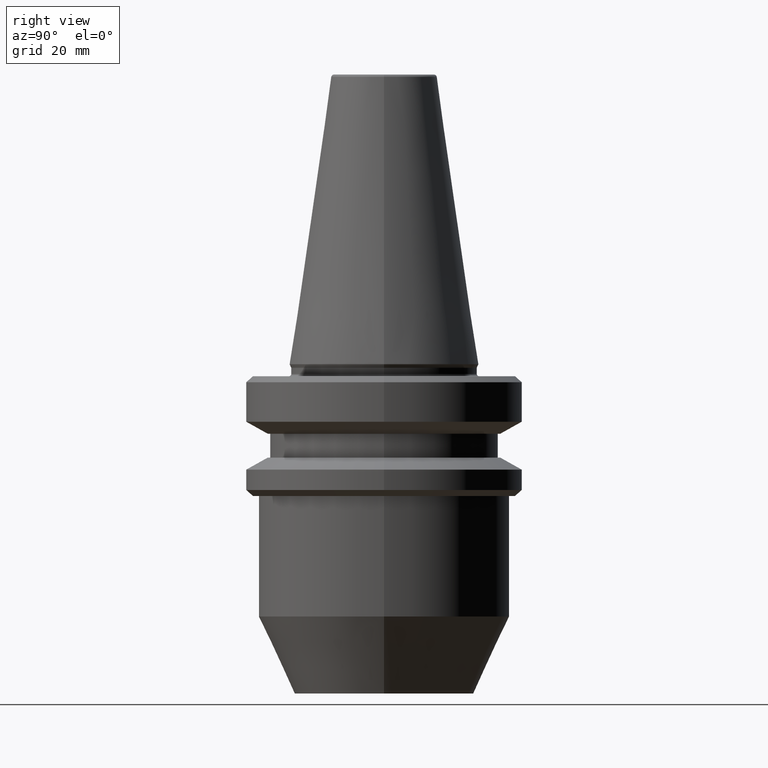
[diagram: clean part render]
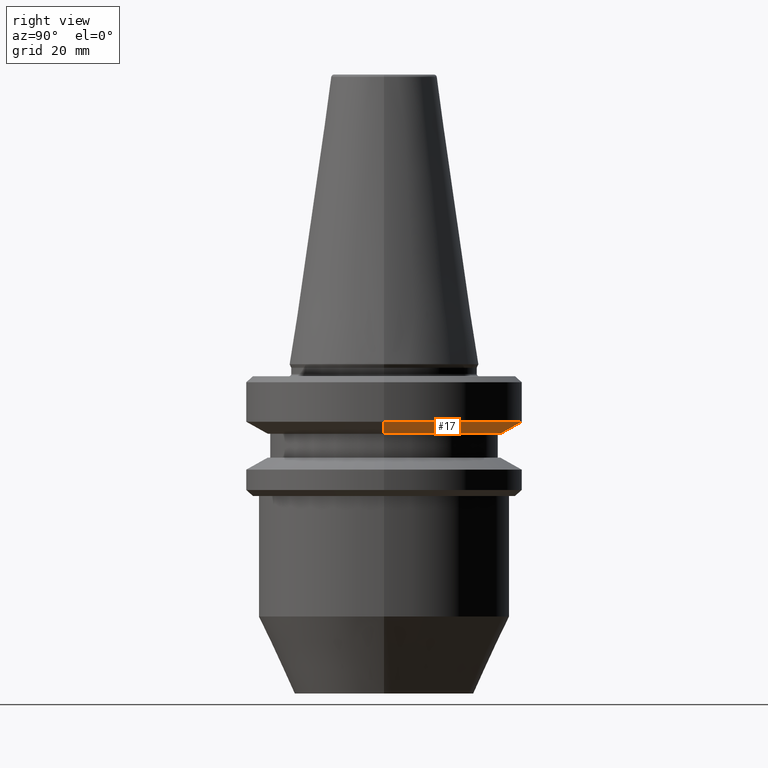
[diagram: same view with one face highlighted and labeled with its STEP entity id]
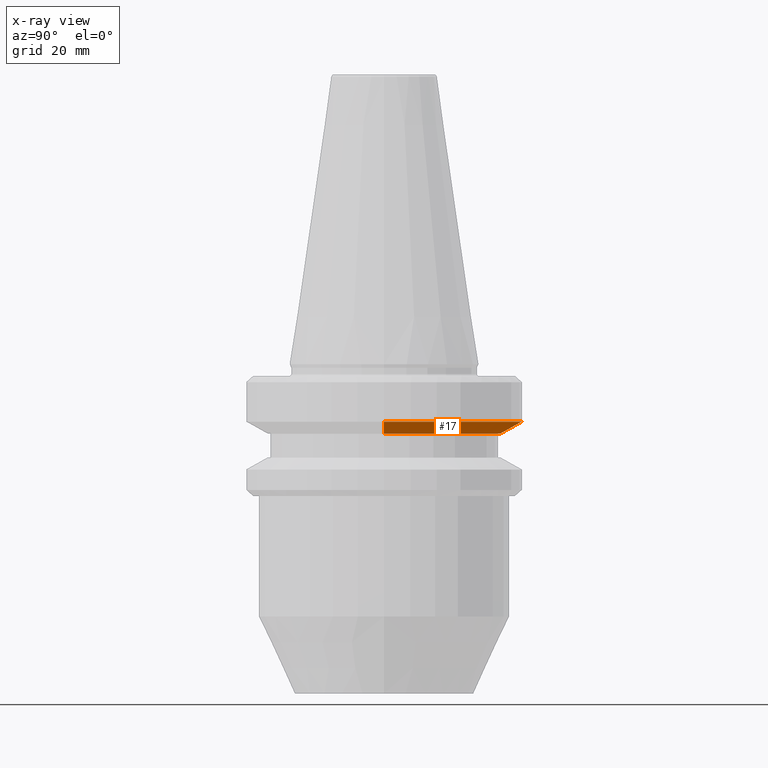
[diagram: x-ray of the same camera — body ghosted, the highlighted face saturated]
A machine part, right view. The second image highlights one B-rep face of the part: STEP entity #17.
The next image is the same camera in x-ray: the body ghosted, the highlighted face saturated — about 0% of this face is hidden behind the body in this view.
In plain terms, the highlighted conical surface has half-angle 60 deg.
Its self-contained STEP definition (entity closure, byte-faithful):
#17 = ADVANCED_FACE ( 'NONE', ( #447 ), #614, .T. ) ;
#27 = LINE ( 'NONE', #394, #592 ) ;
#79 = DIRECTION ( 'NONE',  ( -0.8660254037844393700, 1.060575238724907800E-016, 0.4999999999999985000 ) ) ;
#80 = AXIS2_PLACEMENT_3D ( 'NONE', #687, #582, #532 ) ;
#91 = AXIS2_PLACEMENT_3D ( 'NONE', #145, #262, #486 ) ;
#133 = EDGE_CURVE ( 'NONE', #482, #455, #27, .T. ) ;
#145 = CARTESIAN_POINT ( 'NONE',  ( 0.0000000000000000000, 0.0000000000000000000, -11.59999999999938900 ) ) ;
#160 = CARTESIAN_POINT ( 'NONE',  ( -23.00000000000002100, 2.816687638038914700E-015, -9.600117335054614300 ) ) ;
#166 = ORIENTED_EDGE ( 'NONE', *, *, #133, .T. ) ;
#262 = DIRECTION ( 'NONE',  ( -0.0000000000000000000, -0.0000000000000000000, 1.000000000000000000 ) ) ;
#263 = ORIENTED_EDGE ( 'NONE', *, *, #807, .F. ) ;
#322 = DIRECTION ( 'NONE',  ( 1.000000000000000000, 0.0000000000000000000, 0.0000000000000000000 ) ) ;
#329 = DIRECTION ( 'NONE',  ( -0.0000000000000000000, -0.0000000000000000000, 1.000000000000000000 ) ) ;
#373 = ORIENTED_EDGE ( 'NONE', *, *, #543, .T. ) ;
#394 = CARTESIAN_POINT ( 'NONE',  ( -19.53610161513941200, 2.392482431079791800E-015, -11.59999999999938900 ) ) ;
#447 = FACE_OUTER_BOUND ( 'NONE', #630, .T. ) ;
#455 = VERTEX_POINT ( 'NONE', #160 ) ;
#482 = VERTEX_POINT ( 'NONE', #596 ) ;
#485 = CARTESIAN_POINT ( 'NONE',  ( 19.53610161513941200, 0.0000000000000000000, -11.59999999999938900 ) ) ;
#486 = DIRECTION ( 'NONE',  ( 1.000000000000000000, 0.0000000000000000000, 0.0000000000000000000 ) ) ;
#514 = ORIENTED_EDGE ( 'NONE', *, *, #720, .F. ) ;
#532 = DIRECTION ( 'NONE',  ( 1.000000000000000000, 0.0000000000000000000, 0.0000000000000000000 ) ) ;
#535 = AXIS2_PLACEMENT_3D ( 'NONE', #881, #329, #322 ) ;
#543 = EDGE_CURVE ( 'NONE', #717, #482, #711, .T. ) ;
#555 = VERTEX_POINT ( 'NONE', #859 ) ;
#577 = CIRCLE ( 'NONE', #80, 23.00000000000002100 ) ;
#582 = DIRECTION ( 'NONE',  ( -0.0000000000000000000, -0.0000000000000000000, 1.000000000000000000 ) ) ;
#592 = VECTOR ( 'NONE', #79, 1000.000000000000100 ) ;
#596 = CARTESIAN_POINT ( 'NONE',  ( -19.53610161513941200, 2.604585034559353400E-015, -11.59999999999938900 ) ) ;
#614 = CONICAL_SURFACE ( 'NONE', #535, 19.53610161513941200, 1.047197551196599400 ) ;
#626 = CARTESIAN_POINT ( 'NONE',  ( 19.53610161513941200, 0.0000000000000000000, -11.59999999999938900 ) ) ;
#630 = EDGE_LOOP ( 'NONE', ( #373, #166, #514, #263 ) ) ;
#687 = CARTESIAN_POINT ( 'NONE',  ( 0.0000000000000000000, 0.0000000000000000000, -9.600117335054614300 ) ) ;
#711 = CIRCLE ( 'NONE', #91, 19.53610161513941200 ) ;
#717 = VERTEX_POINT ( 'NONE', #485 ) ;
#720 = EDGE_CURVE ( 'NONE', #555, #455, #577, .T. ) ;
#745 = VECTOR ( 'NONE', #805, 1000.000000000000100 ) ;
#805 = DIRECTION ( 'NONE',  ( 0.8660254037844393700, 0.0000000000000000000, 0.4999999999999985000 ) ) ;
#807 = EDGE_CURVE ( 'NONE', #717, #555, #920, .T. ) ;
#859 = CARTESIAN_POINT ( 'NONE',  ( 23.00000000000002100, 0.0000000000000000000, -9.600117335054614300 ) ) ;
#881 = CARTESIAN_POINT ( 'NONE',  ( 0.0000000000000000000, 0.0000000000000000000, -11.59999999999938900 ) ) ;
#920 = LINE ( 'NONE', #626, #745 ) ;